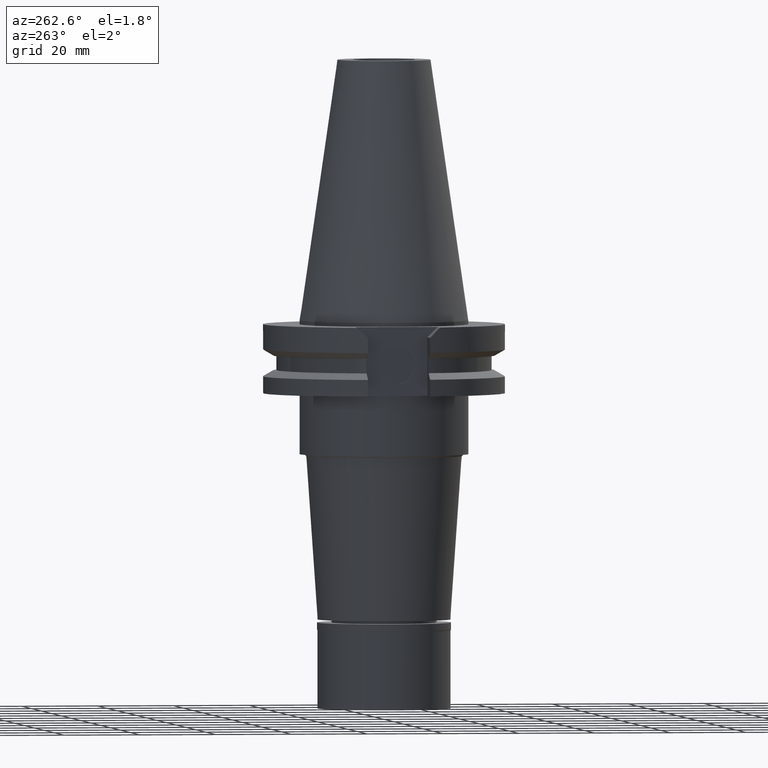
[diagram: clean part render]
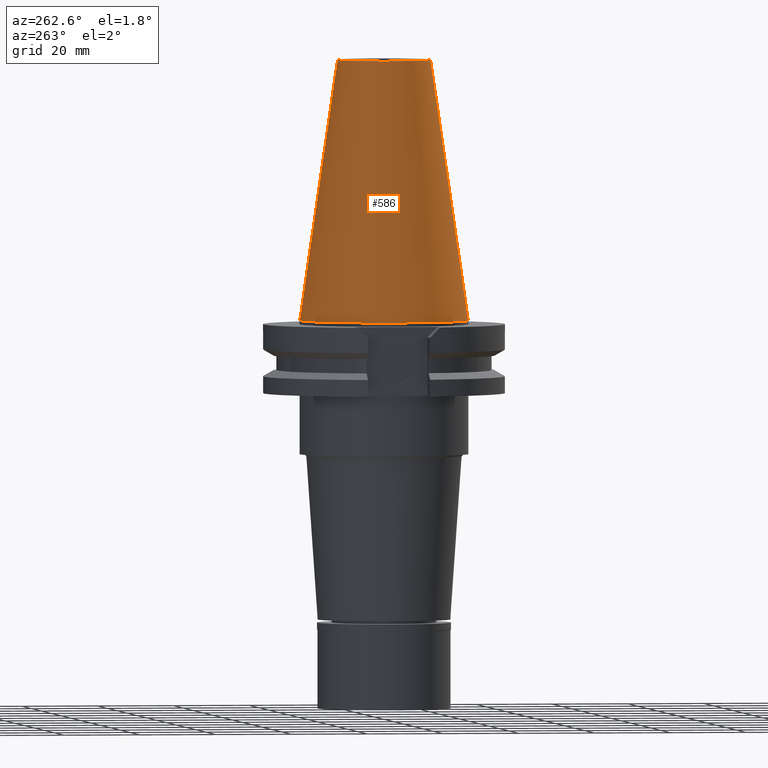
[diagram: same view with one face highlighted and labeled with its STEP entity id]
A machine part, auxiliary view. The second image highlights one B-rep face of the part: STEP entity #586.
In plain terms, the highlighted conical surface has half-angle 8.297 deg.
Its self-contained STEP definition (entity closure, byte-faithful):
#122 = LINE ( 'NONE', #2196, #1981 ) ;
#202 = VECTOR ( 'NONE', #2200, 1000.000000000000114 ) ;
#260 = CARTESIAN_POINT ( 'NONE',  ( 0.0000000000000000000, 1.642557519355999895E-14, -3.126388037344000570E-13 ) ) ;
#301 = EDGE_LOOP ( 'NONE', ( #963, #2288, #1602, #2379 ) ) ;
#381 = DIRECTION ( 'NONE',  ( 0.0000000000000000000, 0.1443069799456937474, -0.9895329683941577192 ) ) ;
#490 = DIRECTION ( 'NONE',  ( 0.0000000000000000000, -1.000000000000000000, 0.0000000000000000000 ) ) ;
#586 = ADVANCED_FACE ( 'NONE', ( #2666 ), #2799, .T. ) ;
#607 = EDGE_CURVE ( 'NONE', #2399, #1769, #608, .T. ) ;
#608 = LINE ( 'NONE', #2452, #202 ) ;
#631 = CARTESIAN_POINT ( 'NONE',  ( 0.0000000000000000000, 1.642557519355999895E-14, 34.12500000000000000 ) ) ;
#673 = VERTEX_POINT ( 'NONE', #1250 ) ;
#963 = ORIENTED_EDGE ( 'NONE', *, *, #1330, .F. ) ;
#1082 = DIRECTION ( 'NONE',  ( 0.0000000000000000000, -1.000000000000000000, 0.0000000000000000000 ) ) ;
#1104 = CIRCLE ( 'NONE', #2199, 22.22500000000000142 ) ;
#1250 = CARTESIAN_POINT ( 'NONE',  ( 0.0000000000000000000, 22.22500000000000142, -2.060573933703999733E-13 ) ) ;
#1251 = CARTESIAN_POINT ( 'NONE',  ( 0.0000000000000000000, -22.22500000000000142, -2.060573933703999733E-13 ) ) ;
#1330 = EDGE_CURVE ( 'NONE', #1769, #673, #1104, .T. ) ;
#1343 = DIRECTION ( 'NONE',  ( 0.0000000000000000000, 0.0000000000000000000, -1.000000000000000000 ) ) ;
#1491 = CIRCLE ( 'NONE', #2043, 12.27186888070000137 ) ;
#1602 = ORIENTED_EDGE ( 'NONE', *, *, #3350, .T. ) ;
#1667 = DIRECTION ( 'NONE',  ( 0.0000000000000000000, -1.000000000000000000, 0.0000000000000000000 ) ) ;
#1769 = VERTEX_POINT ( 'NONE', #1251 ) ;
#1919 = CARTESIAN_POINT ( 'NONE',  ( 0.0000000000000000000, 12.27186888070000137, 68.25000000000000000 ) ) ;
#1981 = VECTOR ( 'NONE', #381, 1000.000000000000114 ) ;
#2000 = VERTEX_POINT ( 'NONE', #1919 ) ;
#2043 = AXIS2_PLACEMENT_3D ( 'NONE', #2872, #1343, #1082 ) ;
#2049 = AXIS2_PLACEMENT_3D ( 'NONE', #631, #3247, #1667 ) ;
#2051 = EDGE_CURVE ( 'NONE', #2000, #673, #122, .T. ) ;
#2196 = CARTESIAN_POINT ( 'NONE',  ( 0.0000000000000000000, 12.27186888070000137, 68.25000000000000000 ) ) ;
#2199 = AXIS2_PLACEMENT_3D ( 'NONE', #260, #2815, #490 ) ;
#2200 = DIRECTION ( 'NONE',  ( 0.0000000000000000000, -0.1443069799456937474, -0.9895329683941577192 ) ) ;
#2278 = CARTESIAN_POINT ( 'NONE',  ( 0.0000000000000000000, -12.27186888070000137, 68.25000000000000000 ) ) ;
#2288 = ORIENTED_EDGE ( 'NONE', *, *, #607, .F. ) ;
#2379 = ORIENTED_EDGE ( 'NONE', *, *, #2051, .T. ) ;
#2399 = VERTEX_POINT ( 'NONE', #2278 ) ;
#2452 = CARTESIAN_POINT ( 'NONE',  ( 0.0000000000000000000, -12.27186888070000137, 68.25000000000000000 ) ) ;
#2666 = FACE_OUTER_BOUND ( 'NONE', #301, .T. ) ;
#2799 = CONICAL_SURFACE ( 'NONE', #2049, 17.24843444035000317, 0.1448125860318199565 ) ;
#2815 = DIRECTION ( 'NONE',  ( 0.0000000000000000000, 0.0000000000000000000, -1.000000000000000000 ) ) ;
#2872 = CARTESIAN_POINT ( 'NONE',  ( 0.0000000000000000000, 1.642557519355999895E-14, 68.25000000000000000 ) ) ;
#3247 = DIRECTION ( 'NONE',  ( 0.0000000000000000000, 0.0000000000000000000, -1.000000000000000000 ) ) ;
#3350 = EDGE_CURVE ( 'NONE', #2399, #2000, #1491, .T. ) ;